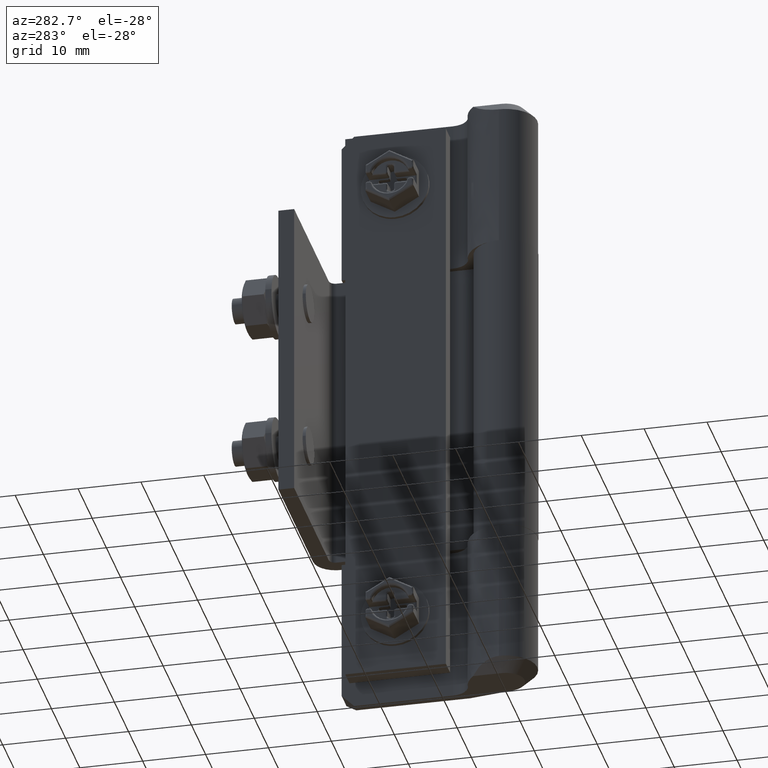
[diagram: clean part render]
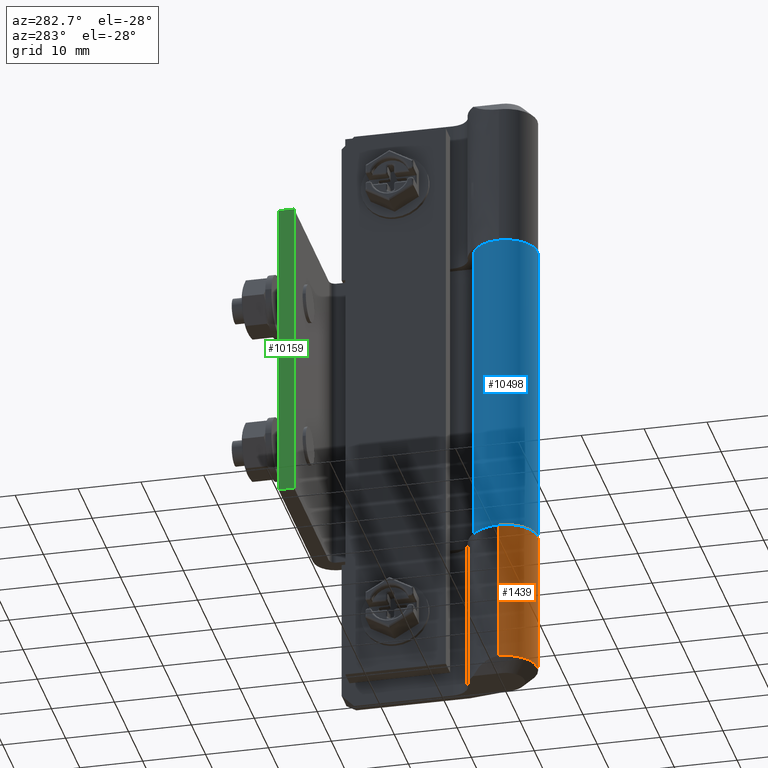
[diagram: same view with three faces highlighted in distinct colors, each labeled with its STEP entity id]
A machine part, auxiliary view with three faces highlighted in distinct colors.
Their STEP definitions:

[orange] entity #1439 — the highlighted face is a freeform B-spline surface patch.
#1055=CARTESIAN_POINT('',(4.942633669839390,-0.755231451860698,1.999999999999945));
#1056=VERTEX_POINT('',#1055);
#1094=CARTESIAN_POINT('',(-4.999902685632060,-0.031236942313723,1.999999999999945));
#1095=VERTEX_POINT('',#1094);
#1128=CARTESIAN_POINT('',(4.942633669839390,-0.755231451860698,1.999999999999945));
#1129=CARTESIAN_POINT('',(4.244783003525487,-5.322334964191628,1.999999999999946));
#1130=CARTESIAN_POINT('',(-0.363128026174859,-4.986796609921686,1.999999999999945));
#1131=CARTESIAN_POINT('',(-4.971039055875210,-4.651258255651746,1.999999999999946));
#1132=CARTESIAN_POINT('',(-4.999902685632065,-0.031236942313723,1.999999999999945));
#1140=(BOUNDED_CURVE()B_SPLINE_CURVE(2,(#1128,#1129,#1130,#1131,#1132),.UNSPECIFIED.,.F.,.U.)B_SPLINE_CURVE_WITH_KNOTS((3,2,3),(0.0,0.500000000000000,1.0),.UNSPECIFIED.)CURVE()GEOMETRIC_REPRESENTATION_ITEM()RATIONAL_B_SPLINE_CURVE((1.0,0.734457306542702,1.0,0.734457306542702,1.0))REPRESENTATION_ITEM(''));
#1141=EDGE_CURVE('',#1056,#1095,#1140,.T.);
#1281=CARTESIAN_POINT('',(-4.999902685632060,-0.031236942313723,25.000001187434901));
#1282=VERTEX_POINT('',#1281);
#1288=CARTESIAN_POINT('',(4.942633669839390,-0.755231451860698,25.000001187434901));
#1289=VERTEX_POINT('',#1288);
#1290=CARTESIAN_POINT('',(4.942633669839391,-0.755231451860696,25.000001187434901));
#1291=CARTESIAN_POINT('',(4.244783003525539,-5.322334964191694,25.000001187434897));
#1292=CARTESIAN_POINT('',(-0.363128026174866,-4.986796609921747,25.000001187434901));
#1293=CARTESIAN_POINT('',(-4.971039055875272,-4.651258255651800,25.000001187434897));
#1294=CARTESIAN_POINT('',(-4.999902685632060,-0.031236942313723,25.000001187434901));
#1302=(BOUNDED_CURVE()B_SPLINE_CURVE(2,(#1290,#1291,#1292,#1293,#1294),.UNSPECIFIED.,.F.,.U.)B_SPLINE_CURVE_WITH_KNOTS((3,2,3),(0.0,0.500000000000000,1.0),.UNSPECIFIED.)CURVE()GEOMETRIC_REPRESENTATION_ITEM()RATIONAL_B_SPLINE_CURVE((1.0,0.734457306542702,1.0,0.734457306542702,1.0))REPRESENTATION_ITEM(''));
#1303=EDGE_CURVE('',#1289,#1282,#1302,.T.);
#1396=CARTESIAN_POINT('',(-4.999902685632060,-0.031236942313723,25.000001187434901));
#1397=CARTESIAN_POINT('',(-4.999902685632060,-0.031236942313723,1.999999999999945));
#1398=QUASI_UNIFORM_CURVE('',1,(#1396,#1397),.UNSPECIFIED.,.F.,.U.);
#1399=EDGE_CURVE('',#1282,#1095,#1398,.T.);
#1411=CARTESIAN_POINT('',(-4.998926286566025,0.103627186532577,25.575001217120779));
#1412=CARTESIAN_POINT('',(-4.998926286566025,0.103627186532577,1.410624969571920));
#1413=CARTESIAN_POINT('',(-5.099875422341017,-4.766111179621654,25.575001217120775));
#1414=CARTESIAN_POINT('',(-5.099875422341017,-4.766111179621654,1.410624969571920));
#1415=CARTESIAN_POINT('',(-0.234448334209345,-4.994500612132763,25.575001217120779));
#1416=CARTESIAN_POINT('',(-0.234448334209345,-4.994500612132763,1.410624969571920));
#1417=CARTESIAN_POINT('',(4.630978753922328,-5.222890044643871,25.575001217120775));
#1418=CARTESIAN_POINT('',(4.630978753922328,-5.222890044643871,1.410624969571920));
#1419=CARTESIAN_POINT('',(4.986651956460817,-0.365108755227456,25.575001217120779));
#1420=CARTESIAN_POINT('',(4.986651956460817,-0.365108755227456,1.410624969571920));
#1428=(BOUNDED_SURFACE()B_SPLINE_SURFACE(1,2,((#1411,#1413,#1415,#1417,#1419),(#1412,#1414,#1416,#1418,#1420)),.UNSPECIFIED.,.F.,.F.,.U.)B_SPLINE_SURFACE_WITH_KNOTS((2,2),(3,2,3),(0.0,24.164376247548859),(0.0,8.131325559098251,16.262651118196501),.UNSPECIFIED.)GEOMETRIC_REPRESENTATION_ITEM()RATIONAL_B_SPLINE_SURFACE(((1.0,0.716301943424654,1.0,0.716301943424654,1.0),(1.0,0.716301943424654,1.0,0.716301943424654,1.0)))REPRESENTATION_ITEM('')SURFACE());
#1429=CARTESIAN_POINT('',(4.942633669839390,-0.755231451860698,25.000001187434901));
#1430=CARTESIAN_POINT('',(4.942633669839390,-0.755231451860698,1.999999999999945));
#1431=QUASI_UNIFORM_CURVE('',1,(#1429,#1430),.UNSPECIFIED.,.F.,.U.);
#1432=EDGE_CURVE('',#1289,#1056,#1431,.T.);
#1433=ORIENTED_EDGE('',*,*,#1432,.F.);
#1434=ORIENTED_EDGE('',*,*,#1303,.T.);
#1435=ORIENTED_EDGE('',*,*,#1399,.T.);
#1436=ORIENTED_EDGE('',*,*,#1141,.F.);
#1437=EDGE_LOOP('',(#1433,#1434,#1435,#1436));
#1438=FACE_OUTER_BOUND('',#1437,.T.);
#1439=ADVANCED_FACE('',(#1438),#1428,.T.);

[blue] entity #10498 — the highlighted face is a freeform B-spline surface patch.
#10284=CARTESIAN_POINT('',(5.049999999999920,0.0,25.000001187434950));
#10285=VERTEX_POINT('',#10284);
#10291=CARTESIAN_POINT('',(2.450000109290695,4.415880372527675,25.000001187434950));
#10292=VERTEX_POINT('',#10291);
#10293=CARTESIAN_POINT('',(5.049999999999915,0.0,25.000001187434950));
#10294=CARTESIAN_POINT('',(5.049999999999915,-3.857913581692546,25.000001187434950));
#10295=CARTESIAN_POINT('',(1.327835582470425,-4.872304656517817,25.000001187434950));
#10296=CARTESIAN_POINT('',(-2.394328835059063,-5.886695731343087,25.000001187434950));
#10297=CARTESIAN_POINT('',(-4.351723828089273,-2.562225541212323,25.000001187434950));
#10298=CARTESIAN_POINT('',(-6.309118821119483,0.762244648918440,25.000001187434950));
#10299=CARTESIAN_POINT('',(-3.616300431588065,3.524893074760792,25.000001187434950));
#10300=CARTESIAN_POINT('',(-0.923482042056645,6.287541500603146,25.000001187434950));
#10301=CARTESIAN_POINT('',(2.450000109290694,4.415880372527676,25.000001187434950));
#10309=(BOUNDED_CURVE()B_SPLINE_CURVE(2,(#10293,#10294,#10295,#10296,#10297,#10298,#10299,#10300,#10301),.UNSPECIFIED.,.F.,.U.)B_SPLINE_CURVE_WITH_KNOTS((3,2,2,2,3),(0.0,0.250000000000000,0.500000000000000,0.750000000000000,1.0),.UNSPECIFIED.)CURVE()GEOMETRIC_REPRESENTATION_ITEM()RATIONAL_B_SPLINE_CURVE((1.0,0.794650155446745,1.0,0.794650155446745,1.0,0.794650155446745,1.0,0.794650155446745,1.0))REPRESENTATION_ITEM(''));
#10310=EDGE_CURVE('',#10285,#10292,#10309,.T.);
#10348=CARTESIAN_POINT('',(2.450000109290695,4.415880372527675,75.000003562310297));
#10349=VERTEX_POINT('',#10348);
#10355=CARTESIAN_POINT('',(5.049999999999920,0.0,75.000003562310297));
#10356=VERTEX_POINT('',#10355);
#10357=CARTESIAN_POINT('',(5.049999999999915,0.0,75.000003562310297));
#10358=CARTESIAN_POINT('',(5.049999999999915,-3.857913581692546,75.000003562310297));
#10359=CARTESIAN_POINT('',(1.327835582470425,-4.872304656517817,75.000003562310297));
#10360=CARTESIAN_POINT('',(-2.394328835059063,-5.886695731343087,75.000003562310297));
#10361=CARTESIAN_POINT('',(-4.351723828089273,-2.562225541212323,75.000003562310297));
#10362=CARTESIAN_POINT('',(-6.309118821119483,0.762244648918440,75.000003562310297));
#10363=CARTESIAN_POINT('',(-3.616300431588065,3.524893074760792,75.000003562310297));
#10364=CARTESIAN_POINT('',(-0.923482042056645,6.287541500603146,75.000003562310297));
#10365=CARTESIAN_POINT('',(2.450000109290694,4.415880372527676,75.000003562310297));
#10373=(BOUNDED_CURVE()B_SPLINE_CURVE(2,(#10357,#10358,#10359,#10360,#10361,#10362,#10363,#10364,#10365),.UNSPECIFIED.,.F.,.U.)B_SPLINE_CURVE_WITH_KNOTS((3,2,2,2,3),(0.0,0.250000000000000,0.500000000000000,0.750000000000000,1.0),.UNSPECIFIED.)CURVE()GEOMETRIC_REPRESENTATION_ITEM()RATIONAL_B_SPLINE_CURVE((1.0,0.794650155446745,1.0,0.794650155446745,1.0,0.794650155446745,1.0,0.794650155446745,1.0))REPRESENTATION_ITEM(''));
#10374=EDGE_CURVE('',#10356,#10349,#10373,.T.);
#10458=CARTESIAN_POINT('',(5.049999999999920,0.0,75.000003562310297));
#10459=CARTESIAN_POINT('',(5.049999999999920,0.0,25.000001187434950));
#10460=QUASI_UNIFORM_CURVE('',1,(#10458,#10459),.UNSPECIFIED.,.F.,.U.);
#10461=EDGE_CURVE('',#10356,#10285,#10460,.T.);
#10466=CARTESIAN_POINT('',(2.488442157621184,4.394332216409358,76.250003621682197));
#10467=CARTESIAN_POINT('',(2.488442157621184,4.394332216409358,23.718751126578770));
#10468=CARTESIAN_POINT('',(-2.842309089094062,7.413053942678272,76.250003621682197));
#10469=CARTESIAN_POINT('',(-2.842309089094062,7.413053942678272,23.718751126578773));
#10470=CARTESIAN_POINT('',(-4.788413104875690,1.604244350794342,76.250003621682197));
#10471=CARTESIAN_POINT('',(-4.788413104875690,1.604244350794342,23.718751126578770));
#10472=CARTESIAN_POINT('',(-6.734517120657317,-4.204565241089589,76.250003621682197));
#10473=CARTESIAN_POINT('',(-6.734517120657317,-4.204565241089589,23.718751126578773));
#10474=CARTESIAN_POINT('',(-0.661097569642969,-5.006540722236489,76.250003621682197));
#10475=CARTESIAN_POINT('',(-0.661097569642969,-5.006540722236489,23.718751126578770));
#10476=CARTESIAN_POINT('',(5.412321981371379,-5.808516203383389,76.250003621682197));
#10477=CARTESIAN_POINT('',(5.412321981371379,-5.808516203383389,23.718751126578773));
#10478=CARTESIAN_POINT('',(5.040699831094387,0.306341660249063,76.250003621682197));
#10479=CARTESIAN_POINT('',(5.040699831094387,0.306341660249063,23.718751126578770));
#10487=(BOUNDED_SURFACE()B_SPLINE_SURFACE(1,2,((#10466,#10468,#10470,#10472,#10474,#10476,#10478),(#10467,#10469,#10471,#10473,#10475,#10477,#10479)),.UNSPECIFIED.,.F.,.F.,.U.)B_SPLINE_SURFACE_WITH_KNOTS((2,2),(3,2,2,3),(0.0,52.531252495103431),(0.0,9.526938499178661,19.053876998357321,28.580815497535980),.UNSPECIFIED.)GEOMETRIC_REPRESENTATION_ITEM()RATIONAL_B_SPLINE_SURFACE(((1.0,0.636078220277764,1.0,0.636078220277764,1.0,0.636078220277764,1.0),(1.0,0.636078220277764,1.0,0.636078220277764,1.0,0.636078220277764,1.0)))REPRESENTATION_ITEM('')SURFACE());
#10488=ORIENTED_EDGE('',*,*,#10310,.F.);
#10489=ORIENTED_EDGE('',*,*,#10461,.F.);
#10490=ORIENTED_EDGE('',*,*,#10374,.T.);
#10491=CARTESIAN_POINT('',(2.450000109290695,4.415880372527675,75.000003562310297));
#10492=CARTESIAN_POINT('',(2.450000109290695,4.415880372527675,25.000001187434950));
#10493=QUASI_UNIFORM_CURVE('',1,(#10491,#10492),.UNSPECIFIED.,.F.,.U.);
#10494=EDGE_CURVE('',#10349,#10292,#10493,.T.);
#10495=ORIENTED_EDGE('',*,*,#10494,.T.);
#10496=EDGE_LOOP('',(#10488,#10489,#10490,#10495));
#10497=FACE_OUTER_BOUND('',#10496,.T.);
#10498=ADVANCED_FACE('',(#10497),#10487,.T.);

[green] entity #10159 — the highlighted face is a freeform B-spline surface patch.
#9985=CARTESIAN_POINT('',(-22.950001101894401,28.500001230495648,25.500001211185001));
#9986=VERTEX_POINT('',#9985);
#9994=CARTESIAN_POINT('',(-22.950001101894401,31.000001349244251,25.500001211185001));
#9995=VERTEX_POINT('',#9994);
#9996=CARTESIAN_POINT('',(-22.950001101894401,31.000001349244251,25.500001211185001));
#9997=CARTESIAN_POINT('',(-22.950001101894401,28.500001230495648,25.500001211185001));
#9998=QUASI_UNIFORM_CURVE('',1,(#9996,#9997),.UNSPECIFIED.,.F.,.U.);
#9999=EDGE_CURVE('',#9995,#9986,#9998,.T.);
#10065=CARTESIAN_POINT('',(-22.950001101894401,28.500001230495648,74.500003538560193));
#10066=VERTEX_POINT('',#10065);
#10125=CARTESIAN_POINT('',(-22.950001101894401,31.000001349244251,74.500003538560193));
#10126=VERTEX_POINT('',#10125);
#10132=CARTESIAN_POINT('',(-22.950001101894401,31.000001349244251,74.500003538560193));
#10133=CARTESIAN_POINT('',(-22.950001101894401,28.500001230495648,74.500003538560193));
#10134=QUASI_UNIFORM_CURVE('',1,(#10132,#10133),.UNSPECIFIED.,.F.,.U.);
#10135=EDGE_CURVE('',#10126,#10066,#10134,.T.);
#10140=CARTESIAN_POINT('',(-22.950001101894401,28.375126906660739,76.947549704962967));
#10141=CARTESIAN_POINT('',(-22.950001101894401,28.375126906660739,23.052453730499771));
#10142=CARTESIAN_POINT('',(-22.950001101894401,31.124876947128499,76.947549704962967));
#10143=CARTESIAN_POINT('',(-22.950001101894401,31.124876947128499,23.052453730499771));
#10144=B_SPLINE_SURFACE_WITH_KNOTS('',1,1,((#10140,#10142),(#10141,#10143)),.UNSPECIFIED.,.F.,.F.,.U.,(2,2),(2,2),(0.0,53.895095974463203),(0.0,2.749750040467756),.UNSPECIFIED.);
#10145=ORIENTED_EDGE('',*,*,#9999,.T.);
#10146=CARTESIAN_POINT('',(-22.950001101894401,28.500001230495648,74.500003538560193));
#10147=CARTESIAN_POINT('',(-22.950001101894401,28.500001230495648,25.500001211185001));
#10148=QUASI_UNIFORM_CURVE('',1,(#10146,#10147),.UNSPECIFIED.,.F.,.U.);
#10149=EDGE_CURVE('',#10066,#9986,#10148,.T.);
#10150=ORIENTED_EDGE('',*,*,#10149,.F.);
#10151=ORIENTED_EDGE('',*,*,#10135,.F.);
#10152=CARTESIAN_POINT('',(-22.950001101894401,31.000001349244251,74.500003538560193));
#10153=CARTESIAN_POINT('',(-22.950001101894401,31.000001349244251,25.500001211185001));
#10154=QUASI_UNIFORM_CURVE('',1,(#10152,#10153),.UNSPECIFIED.,.F.,.U.);
#10155=EDGE_CURVE('',#10126,#9995,#10154,.T.);
#10156=ORIENTED_EDGE('',*,*,#10155,.T.);
#10157=EDGE_LOOP('',(#10145,#10150,#10151,#10156));
#10158=FACE_OUTER_BOUND('',#10157,.T.);
#10159=ADVANCED_FACE('',(#10158),#10144,.F.);